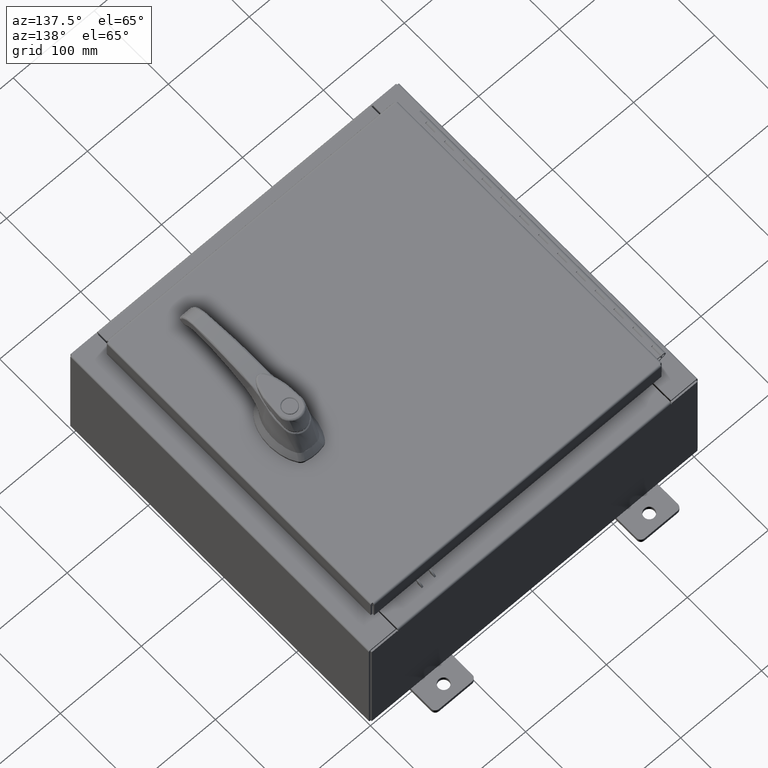
[diagram: clean part render]
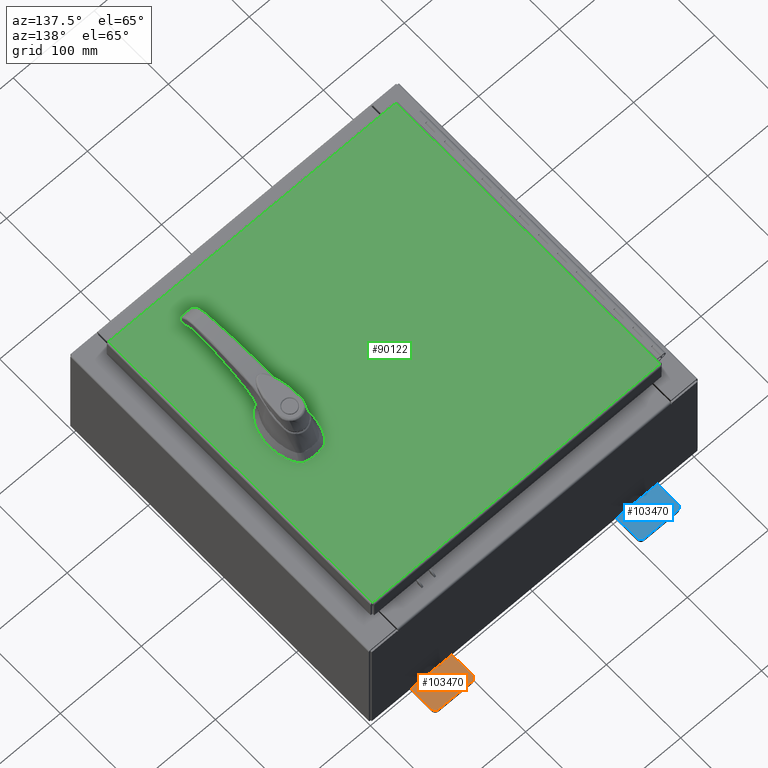
[diagram: same view with three faces highlighted in distinct colors, each labeled with its STEP entity id]
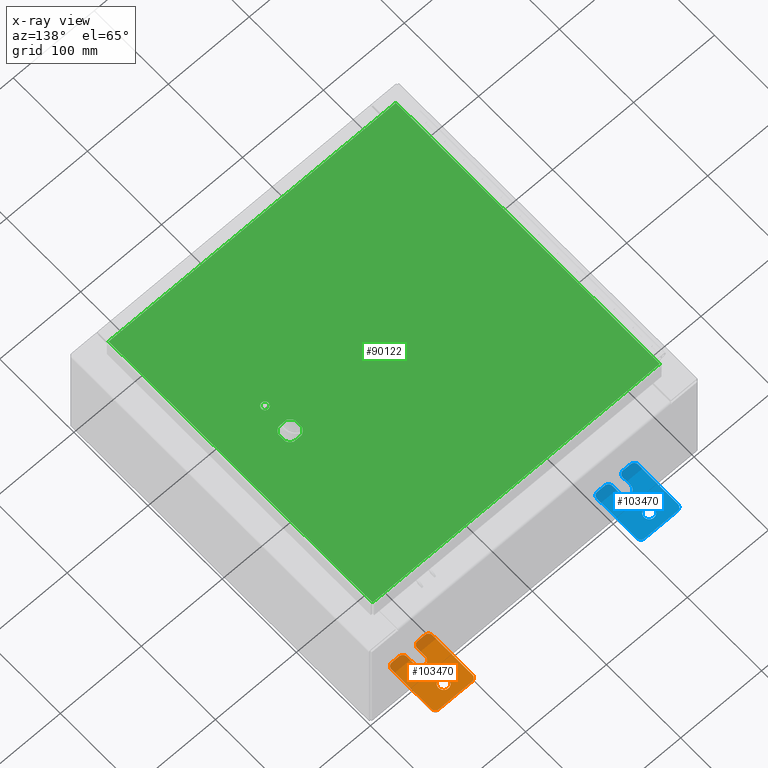
[diagram: x-ray of the same camera — body ghosted, the three highlighted faces saturated]
A machine part, auxiliary view with three faces highlighted in distinct colors.
The next image is the same camera in x-ray (body ghosted, the three faces saturated) — at least one of them is partly hidden behind the body in this view.
Their STEP definitions:

[orange] entity #103470 — the highlighted planar face has unit normal (0, 0, 1).
#368 = AXIS2_PLACEMENT_3D ( 'NONE', #55831, #6468, #64090 ) ;
#591 = EDGE_CURVE ( 'NONE', #22588, #81093, #73869, .T. ) ;
#2702 = DIRECTION ( 'NONE',  ( 1.000000000000000000, -0.0000000000000000000, -5.163192708025532000E-017 ) ) ;
#5444 = PLANE ( 'NONE',  #74349 ) ;
#5671 = CARTESIAN_POINT ( 'NONE',  ( 6.829619984160658000E-017, -1.250000000000003800, 0.2500000000000005000 ) ) ;
#5837 = CARTESIAN_POINT ( 'NONE',  ( 0.0000000000000000000, -1.060000000000004100, -0.8100000000000050500 ) ) ;
#6153 = EDGE_CURVE ( 'NONE', #78520, #81485, #92301, .T. ) ;
#6468 = DIRECTION ( 'NONE',  ( 1.000000000000000000, 0.0000000000000000000, -0.0000000000000000000 ) ) ;
#6765 = LINE ( 'NONE', #50945, #28680 ) ;
#7447 = ORIENTED_EDGE ( 'NONE', *, *, #591, .T. ) ;
#8420 = VERTEX_POINT ( 'NONE', #75197 ) ;
#8698 = DIRECTION ( 'NONE',  ( 0.0000000000000000000, -1.000000000000000000, 1.639108796198558100E-015 ) ) ;
#9643 = EDGE_CURVE ( 'NONE', #81485, #8420, #66093, .T. ) ;
#10253 = DIRECTION ( 'NONE',  ( -1.000000000000000000, 6.523827964459549700E-016, 5.163192708025532000E-017 ) ) ;
#10698 = CIRCLE ( 'NONE', #64456, 0.1900000000000011100 ) ;
#11031 = ORIENTED_EDGE ( 'NONE', *, *, #88887, .F. ) ;
#13607 = DIRECTION ( 'NONE',  ( 1.000000000000000000, -0.0000000000000000000, -5.163192708025532000E-017 ) ) ;
#13627 = CARTESIAN_POINT ( 'NONE',  ( 0.0000000000000000000, -1.250000000000003100, 0.4400000000000020000 ) ) ;
#14053 = DIRECTION ( 'NONE',  ( 0.0000000000000000000, 0.0000000000000000000, -1.000000000000000000 ) ) ;
#14481 = CIRCLE ( 'NONE', #45889, 0.1900000000000011100 ) ;
#14905 = DIRECTION ( 'NONE',  ( 1.000000000000000000, 0.0000000000000000000, -0.0000000000000000000 ) ) ;
#16952 = CIRCLE ( 'NONE', #43343, 0.2499999999999999200 ) ;
#17820 = ORIENTED_EDGE ( 'NONE', *, *, #100490, .T. ) ;
#17823 = VECTOR ( 'NONE', #36803, 39.37007874015748100 ) ;
#20394 = LINE ( 'NONE', #69532, #17823 ) ;
#21339 = VERTEX_POINT ( 'NONE', #73509 ) ;
#21554 = VERTEX_POINT ( 'NONE', #75662 ) ;
#21658 = DIRECTION ( 'NONE',  ( 1.000000000000000000, 0.0000000000000000000, -0.0000000000000000000 ) ) ;
#22012 = DIRECTION ( 'NONE',  ( -0.0000000000000000000, 0.0000000000000000000, -1.000000000000000000 ) ) ;
#22588 = VERTEX_POINT ( 'NONE', #34640 ) ;
#23761 = AXIS2_PLACEMENT_3D ( 'NONE', #52112, #2702, #60320 ) ;
#24862 = VERTEX_POINT ( 'NONE', #68133 ) ;
#26306 = VECTOR ( 'NONE', #8698, 39.37007874015748100 ) ;
#28680 = VECTOR ( 'NONE', #100605, 39.37007874015748100 ) ;
#28807 = VERTEX_POINT ( 'NONE', #93732 ) ;
#28867 = CIRCLE ( 'NONE', #23761, 0.2499999999999999200 ) ;
#29326 = ORIENTED_EDGE ( 'NONE', *, *, #106937, .T. ) ;
#29964 = CARTESIAN_POINT ( 'NONE',  ( 0.0000000000000000000, 0.0000000000000000000, 0.0000000000000000000 ) ) ;
#29988 = VECTOR ( 'NONE', #60810, 39.37007874015748100 ) ;
#32215 = CARTESIAN_POINT ( 'NONE',  ( 0.0000000000000000000, 1.059999999999996500, 0.9999999999999953400 ) ) ;
#32689 = CARTESIAN_POINT ( 'NONE',  ( 0.0000000000000000000, 1.249999999999994200, -1.000000000000010400 ) ) ;
#32699 = VERTEX_POINT ( 'NONE', #99750 ) ;
#33771 = CIRCLE ( 'NONE', #368, 0.1900000000000011100 ) ;
#34176 = ORIENTED_EDGE ( 'NONE', *, *, #80859, .T. ) ;
#34269 = DIRECTION ( 'NONE',  ( 1.000000000000000000, 0.0000000000000000000, -0.0000000000000000000 ) ) ;
#34640 = CARTESIAN_POINT ( 'NONE',  ( 0.0000000000000000000, -1.060000000000004500, -1.000000000000006400 ) ) ;
#36803 = DIRECTION ( 'NONE',  ( 0.0000000000000000000, -1.639108796198553600E-015, -1.000000000000000000 ) ) ;
#39849 = EDGE_CURVE ( 'NONE', #8420, #66221, #6765, .T. ) ;
#40783 = LINE ( 'NONE', #89771, #54911 ) ;
#40949 = DIRECTION ( 'NONE',  ( 0.0000000000000000000, 1.639108796198553600E-015, 1.000000000000000000 ) ) ;
#41131 = VECTOR ( 'NONE', #54990, 39.37007874015748100 ) ;
#42634 = ORIENTED_EDGE ( 'NONE', *, *, #102273, .F. ) ;
#43343 = AXIS2_PLACEMENT_3D ( 'NONE', #59584, #10253, #67904 ) ;
#44405 = CARTESIAN_POINT ( 'NONE',  ( 0.0000000000000000000, 1.059999999999996300, 0.8099999999999938400 ) ) ;
#45497 = DIRECTION ( 'NONE',  ( 1.000000000000000000, 0.0000000000000000000, -0.0000000000000000000 ) ) ;
#45537 = CARTESIAN_POINT ( 'NONE',  ( 0.0000000000000000000, -1.060000000000001200, 0.9999999999999988900 ) ) ;
#45889 = AXIS2_PLACEMENT_3D ( 'NONE', #64266, #14905, #72652 ) ;
#49606 = CIRCLE ( 'NONE', #54684, 0.1900000000000011400 ) ;
#50945 = CARTESIAN_POINT ( 'NONE',  ( 0.0000000000000000000, -1.250000000000002200, 0.9999999999999992200 ) ) ;
#51397 = AXIS2_PLACEMENT_3D ( 'NONE', #5837, #63434, #14053 ) ;
#51505 = CARTESIAN_POINT ( 'NONE',  ( 0.0000000000000000000, -1.060000000000001600, 0.8099999999999978300 ) ) ;
#52112 = CARTESIAN_POINT ( 'NONE',  ( 4.039428427013647300E-016, 0.6249999999999992200, -9.783840404509077400E-018 ) ) ;
#52671 = DIRECTION ( 'NONE',  ( 0.0000000000000000000, 0.0000000000000000000, -1.000000000000000000 ) ) ;
#52775 = ORIENTED_EDGE ( 'NONE', *, *, #77854, .T. ) ;
#54684 = AXIS2_PLACEMENT_3D ( 'NONE', #95139, #45497, #103473 ) ;
#54911 = VECTOR ( 'NONE', #98175, 39.37007874015748100 ) ;
#54990 = DIRECTION ( 'NONE',  ( 6.556435184794182400E-016, 1.000000000000000000, 0.0000000000000000000 ) ) ;
#55489 = CARTESIAN_POINT ( 'NONE',  ( 4.780733988912460100E-016, -0.6249999999999993300, -0.2499999999999998600 ) ) ;
#55831 = CARTESIAN_POINT ( 'NONE',  ( 0.0000000000000000000, -1.060000000000003400, -0.4400000000000005000 ) ) ;
#56345 = CIRCLE ( 'NONE', #51397, 0.1900000000000011100 ) ;
#56928 = EDGE_CURVE ( 'NONE', #32699, #22588, #56345, .T. ) ;
#59513 = ORIENTED_EDGE ( 'NONE', *, *, #91741, .T. ) ;
#59584 = CARTESIAN_POINT ( 'NONE',  ( 4.780733988912460100E-016, -0.6249999999999993300, 5.858939755051854500E-017 ) ) ;
#60320 = DIRECTION ( 'NONE',  ( -5.163192708025533800E-017, 0.0000000000000000000, -1.000000000000000000 ) ) ;
#60810 = DIRECTION ( 'NONE',  ( 0.0000000000000000000, 1.000000000000000000, -1.639108796198558100E-015 ) ) ;
#62102 = DIRECTION ( 'NONE',  ( 0.0000000000000000000, 0.0000000000000000000, -1.000000000000000000 ) ) ;
#62944 = CARTESIAN_POINT ( 'NONE',  ( 4.039428427013647300E-016, 0.6249999999999992200, -9.783840404509077400E-018 ) ) ;
#63434 = DIRECTION ( 'NONE',  ( 1.000000000000000000, 0.0000000000000000000, -0.0000000000000000000 ) ) ;
#64090 = DIRECTION ( 'NONE',  ( 0.0000000000000000000, 0.0000000000000000000, -1.000000000000000000 ) ) ;
#64266 = CARTESIAN_POINT ( 'NONE',  ( 0.0000000000000000000, 1.059999999999993600, -0.8100000000000089400 ) ) ;
#64456 = AXIS2_PLACEMENT_3D ( 'NONE', #44405, #102394, #52671 ) ;
#64802 = CARTESIAN_POINT ( 'NONE',  ( 0.0000000000000000000, 1.249999999999994700, -0.8100000000000092700 ) ) ;
#66093 = CIRCLE ( 'NONE', #88180, 0.1900000000000011100 ) ;
#66221 = VERTEX_POINT ( 'NONE', #13627 ) ;
#66820 = ORIENTED_EDGE ( 'NONE', *, *, #6153, .T. ) ;
#67120 = ORIENTED_EDGE ( 'NONE', *, *, #104345, .T. ) ;
#67897 = CARTESIAN_POINT ( 'NONE',  ( 0.0000000000000000000, 1.249999999999997600, 0.9999999999999951200 ) ) ;
#67904 = DIRECTION ( 'NONE',  ( -6.523827964459551700E-016, -1.000000000000000000, 0.0000000000000000000 ) ) ;
#68133 = CARTESIAN_POINT ( 'NONE',  ( 0.0000000000000000000, -1.250000000000004700, -0.4400000000000002200 ) ) ;
#68289 = VECTOR ( 'NONE', #40949, 39.37007874015748100 ) ;
#69532 = CARTESIAN_POINT ( 'NONE',  ( 0.0000000000000000000, -1.250000000000002200, 0.9999999999999992200 ) ) ;
#71315 = DIRECTION ( 'NONE',  ( -5.163192708025533800E-017, 0.0000000000000000000, -1.000000000000000000 ) ) ;
#71704 = VERTEX_POINT ( 'NONE', #96844 ) ;
#72652 = DIRECTION ( 'NONE',  ( 0.0000000000000000000, 0.0000000000000000000, -1.000000000000000000 ) ) ;
#73253 = ORIENTED_EDGE ( 'NONE', *, *, #9643, .T. ) ;
#73509 = CARTESIAN_POINT ( 'NONE',  ( 0.0000000000000000000, 1.249999999999997300, 0.8099999999999935000 ) ) ;
#73869 = LINE ( 'NONE', #75603, #29988 ) ;
#74349 = AXIS2_PLACEMENT_3D ( 'NONE', #29964, #21658, #22012 ) ;
#75197 = CARTESIAN_POINT ( 'NONE',  ( 0.0000000000000000000, -1.250000000000002400, 0.8099999999999980500 ) ) ;
#75603 = CARTESIAN_POINT ( 'NONE',  ( 0.0000000000000000000, -1.250000000000005600, -1.000000000000006200 ) ) ;
#75662 = CARTESIAN_POINT ( 'NONE',  ( 1.928684683526964400E-016, -1.060000000000003400, -0.2499999999999994400 ) ) ;
#77854 = EDGE_CURVE ( 'NONE', #24862, #32699, #20394, .T. ) ;
#78376 = ORIENTED_EDGE ( 'NONE', *, *, #97193, .T. ) ;
#78520 = VERTEX_POINT ( 'NONE', #32215 ) ;
#78947 = CARTESIAN_POINT ( 'NONE',  ( 0.0000000000000000000, -0.6249999999999992200, 0.2500000000000005000 ) ) ;
#80446 = VERTEX_POINT ( 'NONE', #89874 ) ;
#80491 = ORIENTED_EDGE ( 'NONE', *, *, #94805, .T. ) ;
#80859 = EDGE_CURVE ( 'NONE', #80446, #97762, #102049, .T. ) ;
#81093 = VERTEX_POINT ( 'NONE', #90877 ) ;
#81485 = VERTEX_POINT ( 'NONE', #45537 ) ;
#82657 = FACE_BOUND ( 'NONE', #104267, .T. ) ;
#88180 = AXIS2_PLACEMENT_3D ( 'NONE', #51505, #34269, #62102 ) ;
#88887 = EDGE_CURVE ( 'NONE', #71704, #28807, #28867, .T. ) ;
#89771 = CARTESIAN_POINT ( 'NONE',  ( 4.780733988912460100E-016, -0.6249999999999993300, -0.2499999999999993900 ) ) ;
#89874 = CARTESIAN_POINT ( 'NONE',  ( 1.928684683526972300E-016, -1.060000000000002100, 0.2500000000000005000 ) ) ;
#90384 = ORIENTED_EDGE ( 'NONE', *, *, #39849, .T. ) ;
#90416 = LINE ( 'NONE', #32689, #68289 ) ;
#90877 = CARTESIAN_POINT ( 'NONE',  ( 0.0000000000000000000, 1.059999999999993400, -1.000000000000010000 ) ) ;
#91733 = AXIS2_PLACEMENT_3D ( 'NONE', #62944, #13607, #71315 ) ;
#91741 = EDGE_CURVE ( 'NONE', #21554, #24862, #33771, .T. ) ;
#92301 = LINE ( 'NONE', #67897, #26306 ) ;
#93732 = CARTESIAN_POINT ( 'NONE',  ( 3.910348609313009100E-016, 0.6249999999999992200, -0.2499999999999999200 ) ) ;
#94805 = EDGE_CURVE ( 'NONE', #103538, #21554, #40783, .T. ) ;
#95139 = CARTESIAN_POINT ( 'NONE',  ( 0.0000000000000000000, -1.060000000000002100, 0.4400000000000016700 ) ) ;
#96844 = CARTESIAN_POINT ( 'NONE',  ( 4.168508244714285900E-016, 0.6249999999999992200, 0.2499999999999999200 ) ) ;
#97193 = EDGE_CURVE ( 'NONE', #66221, #80446, #49606, .T. ) ;
#97534 = EDGE_LOOP ( 'NONE', ( #66820, #73253, #90384, #78376, #34176, #29326, #80491, #59513, #52775, #101998, #7447, #101059, #67120, #17820 ) ) ;
#97762 = VERTEX_POINT ( 'NONE', #78947 ) ;
#98175 = DIRECTION ( 'NONE',  ( -6.556435184794182400E-016, -1.000000000000000000, -1.639108796198545600E-016 ) ) ;
#99750 = CARTESIAN_POINT ( 'NONE',  ( 0.0000000000000000000, -1.250000000000005300, -0.8100000000000047200 ) ) ;
#100490 = EDGE_CURVE ( 'NONE', #21339, #78520, #10698, .T. ) ;
#100605 = DIRECTION ( 'NONE',  ( 0.0000000000000000000, -1.639108796198553600E-015, -1.000000000000000000 ) ) ;
#101014 = EDGE_CURVE ( 'NONE', #81093, #106344, #14481, .T. ) ;
#101059 = ORIENTED_EDGE ( 'NONE', *, *, #101014, .T. ) ;
#101998 = ORIENTED_EDGE ( 'NONE', *, *, #56928, .T. ) ;
#102049 = LINE ( 'NONE', #5671, #41131 ) ;
#102273 = EDGE_CURVE ( 'NONE', #28807, #71704, #103691, .T. ) ;
#102394 = DIRECTION ( 'NONE',  ( 1.000000000000000000, 0.0000000000000000000, -0.0000000000000000000 ) ) ;
#103470 = ADVANCED_FACE ( 'NONE', ( #82657, #104855 ), #5444, .T. ) ;
#103473 = DIRECTION ( 'NONE',  ( 0.0000000000000000000, 0.0000000000000000000, -1.000000000000000000 ) ) ;
#103538 = VERTEX_POINT ( 'NONE', #55489 ) ;
#103691 = CIRCLE ( 'NONE', #91733, 0.2499999999999999200 ) ;
#104267 = EDGE_LOOP ( 'NONE', ( #42634, #11031 ) ) ;
#104345 = EDGE_CURVE ( 'NONE', #106344, #21339, #90416, .T. ) ;
#104855 = FACE_OUTER_BOUND ( 'NONE', #97534, .T. ) ;
#106344 = VERTEX_POINT ( 'NONE', #64802 ) ;
#106937 = EDGE_CURVE ( 'NONE', #97762, #103538, #16952, .T. ) ;

[blue] entity #103470 — the highlighted planar face has unit normal (0, 0, 1).
#368 = AXIS2_PLACEMENT_3D ( 'NONE', #55831, #6468, #64090 ) ;
#591 = EDGE_CURVE ( 'NONE', #22588, #81093, #73869, .T. ) ;
#2702 = DIRECTION ( 'NONE',  ( 1.000000000000000000, -0.0000000000000000000, -5.163192708025532000E-017 ) ) ;
#5444 = PLANE ( 'NONE',  #74349 ) ;
#5671 = CARTESIAN_POINT ( 'NONE',  ( 6.829619984160658000E-017, -1.250000000000003800, 0.2500000000000005000 ) ) ;
#5837 = CARTESIAN_POINT ( 'NONE',  ( 0.0000000000000000000, -1.060000000000004100, -0.8100000000000050500 ) ) ;
#6153 = EDGE_CURVE ( 'NONE', #78520, #81485, #92301, .T. ) ;
#6468 = DIRECTION ( 'NONE',  ( 1.000000000000000000, 0.0000000000000000000, -0.0000000000000000000 ) ) ;
#6765 = LINE ( 'NONE', #50945, #28680 ) ;
#7447 = ORIENTED_EDGE ( 'NONE', *, *, #591, .T. ) ;
#8420 = VERTEX_POINT ( 'NONE', #75197 ) ;
#8698 = DIRECTION ( 'NONE',  ( 0.0000000000000000000, -1.000000000000000000, 1.639108796198558100E-015 ) ) ;
#9643 = EDGE_CURVE ( 'NONE', #81485, #8420, #66093, .T. ) ;
#10253 = DIRECTION ( 'NONE',  ( -1.000000000000000000, 6.523827964459549700E-016, 5.163192708025532000E-017 ) ) ;
#10698 = CIRCLE ( 'NONE', #64456, 0.1900000000000011100 ) ;
#11031 = ORIENTED_EDGE ( 'NONE', *, *, #88887, .F. ) ;
#13607 = DIRECTION ( 'NONE',  ( 1.000000000000000000, -0.0000000000000000000, -5.163192708025532000E-017 ) ) ;
#13627 = CARTESIAN_POINT ( 'NONE',  ( 0.0000000000000000000, -1.250000000000003100, 0.4400000000000020000 ) ) ;
#14053 = DIRECTION ( 'NONE',  ( 0.0000000000000000000, 0.0000000000000000000, -1.000000000000000000 ) ) ;
#14481 = CIRCLE ( 'NONE', #45889, 0.1900000000000011100 ) ;
#14905 = DIRECTION ( 'NONE',  ( 1.000000000000000000, 0.0000000000000000000, -0.0000000000000000000 ) ) ;
#16952 = CIRCLE ( 'NONE', #43343, 0.2499999999999999200 ) ;
#17820 = ORIENTED_EDGE ( 'NONE', *, *, #100490, .T. ) ;
#17823 = VECTOR ( 'NONE', #36803, 39.37007874015748100 ) ;
#20394 = LINE ( 'NONE', #69532, #17823 ) ;
#21339 = VERTEX_POINT ( 'NONE', #73509 ) ;
#21554 = VERTEX_POINT ( 'NONE', #75662 ) ;
#21658 = DIRECTION ( 'NONE',  ( 1.000000000000000000, 0.0000000000000000000, -0.0000000000000000000 ) ) ;
#22012 = DIRECTION ( 'NONE',  ( -0.0000000000000000000, 0.0000000000000000000, -1.000000000000000000 ) ) ;
#22588 = VERTEX_POINT ( 'NONE', #34640 ) ;
#23761 = AXIS2_PLACEMENT_3D ( 'NONE', #52112, #2702, #60320 ) ;
#24862 = VERTEX_POINT ( 'NONE', #68133 ) ;
#26306 = VECTOR ( 'NONE', #8698, 39.37007874015748100 ) ;
#28680 = VECTOR ( 'NONE', #100605, 39.37007874015748100 ) ;
#28807 = VERTEX_POINT ( 'NONE', #93732 ) ;
#28867 = CIRCLE ( 'NONE', #23761, 0.2499999999999999200 ) ;
#29326 = ORIENTED_EDGE ( 'NONE', *, *, #106937, .T. ) ;
#29964 = CARTESIAN_POINT ( 'NONE',  ( 0.0000000000000000000, 0.0000000000000000000, 0.0000000000000000000 ) ) ;
#29988 = VECTOR ( 'NONE', #60810, 39.37007874015748100 ) ;
#32215 = CARTESIAN_POINT ( 'NONE',  ( 0.0000000000000000000, 1.059999999999996500, 0.9999999999999953400 ) ) ;
#32689 = CARTESIAN_POINT ( 'NONE',  ( 0.0000000000000000000, 1.249999999999994200, -1.000000000000010400 ) ) ;
#32699 = VERTEX_POINT ( 'NONE', #99750 ) ;
#33771 = CIRCLE ( 'NONE', #368, 0.1900000000000011100 ) ;
#34176 = ORIENTED_EDGE ( 'NONE', *, *, #80859, .T. ) ;
#34269 = DIRECTION ( 'NONE',  ( 1.000000000000000000, 0.0000000000000000000, -0.0000000000000000000 ) ) ;
#34640 = CARTESIAN_POINT ( 'NONE',  ( 0.0000000000000000000, -1.060000000000004500, -1.000000000000006400 ) ) ;
#36803 = DIRECTION ( 'NONE',  ( 0.0000000000000000000, -1.639108796198553600E-015, -1.000000000000000000 ) ) ;
#39849 = EDGE_CURVE ( 'NONE', #8420, #66221, #6765, .T. ) ;
#40783 = LINE ( 'NONE', #89771, #54911 ) ;
#40949 = DIRECTION ( 'NONE',  ( 0.0000000000000000000, 1.639108796198553600E-015, 1.000000000000000000 ) ) ;
#41131 = VECTOR ( 'NONE', #54990, 39.37007874015748100 ) ;
#42634 = ORIENTED_EDGE ( 'NONE', *, *, #102273, .F. ) ;
#43343 = AXIS2_PLACEMENT_3D ( 'NONE', #59584, #10253, #67904 ) ;
#44405 = CARTESIAN_POINT ( 'NONE',  ( 0.0000000000000000000, 1.059999999999996300, 0.8099999999999938400 ) ) ;
#45497 = DIRECTION ( 'NONE',  ( 1.000000000000000000, 0.0000000000000000000, -0.0000000000000000000 ) ) ;
#45537 = CARTESIAN_POINT ( 'NONE',  ( 0.0000000000000000000, -1.060000000000001200, 0.9999999999999988900 ) ) ;
#45889 = AXIS2_PLACEMENT_3D ( 'NONE', #64266, #14905, #72652 ) ;
#49606 = CIRCLE ( 'NONE', #54684, 0.1900000000000011400 ) ;
#50945 = CARTESIAN_POINT ( 'NONE',  ( 0.0000000000000000000, -1.250000000000002200, 0.9999999999999992200 ) ) ;
#51397 = AXIS2_PLACEMENT_3D ( 'NONE', #5837, #63434, #14053 ) ;
#51505 = CARTESIAN_POINT ( 'NONE',  ( 0.0000000000000000000, -1.060000000000001600, 0.8099999999999978300 ) ) ;
#52112 = CARTESIAN_POINT ( 'NONE',  ( 4.039428427013647300E-016, 0.6249999999999992200, -9.783840404509077400E-018 ) ) ;
#52671 = DIRECTION ( 'NONE',  ( 0.0000000000000000000, 0.0000000000000000000, -1.000000000000000000 ) ) ;
#52775 = ORIENTED_EDGE ( 'NONE', *, *, #77854, .T. ) ;
#54684 = AXIS2_PLACEMENT_3D ( 'NONE', #95139, #45497, #103473 ) ;
#54911 = VECTOR ( 'NONE', #98175, 39.37007874015748100 ) ;
#54990 = DIRECTION ( 'NONE',  ( 6.556435184794182400E-016, 1.000000000000000000, 0.0000000000000000000 ) ) ;
#55489 = CARTESIAN_POINT ( 'NONE',  ( 4.780733988912460100E-016, -0.6249999999999993300, -0.2499999999999998600 ) ) ;
#55831 = CARTESIAN_POINT ( 'NONE',  ( 0.0000000000000000000, -1.060000000000003400, -0.4400000000000005000 ) ) ;
#56345 = CIRCLE ( 'NONE', #51397, 0.1900000000000011100 ) ;
#56928 = EDGE_CURVE ( 'NONE', #32699, #22588, #56345, .T. ) ;
#59513 = ORIENTED_EDGE ( 'NONE', *, *, #91741, .T. ) ;
#59584 = CARTESIAN_POINT ( 'NONE',  ( 4.780733988912460100E-016, -0.6249999999999993300, 5.858939755051854500E-017 ) ) ;
#60320 = DIRECTION ( 'NONE',  ( -5.163192708025533800E-017, 0.0000000000000000000, -1.000000000000000000 ) ) ;
#60810 = DIRECTION ( 'NONE',  ( 0.0000000000000000000, 1.000000000000000000, -1.639108796198558100E-015 ) ) ;
#62102 = DIRECTION ( 'NONE',  ( 0.0000000000000000000, 0.0000000000000000000, -1.000000000000000000 ) ) ;
#62944 = CARTESIAN_POINT ( 'NONE',  ( 4.039428427013647300E-016, 0.6249999999999992200, -9.783840404509077400E-018 ) ) ;
#63434 = DIRECTION ( 'NONE',  ( 1.000000000000000000, 0.0000000000000000000, -0.0000000000000000000 ) ) ;
#64090 = DIRECTION ( 'NONE',  ( 0.0000000000000000000, 0.0000000000000000000, -1.000000000000000000 ) ) ;
#64266 = CARTESIAN_POINT ( 'NONE',  ( 0.0000000000000000000, 1.059999999999993600, -0.8100000000000089400 ) ) ;
#64456 = AXIS2_PLACEMENT_3D ( 'NONE', #44405, #102394, #52671 ) ;
#64802 = CARTESIAN_POINT ( 'NONE',  ( 0.0000000000000000000, 1.249999999999994700, -0.8100000000000092700 ) ) ;
#66093 = CIRCLE ( 'NONE', #88180, 0.1900000000000011100 ) ;
#66221 = VERTEX_POINT ( 'NONE', #13627 ) ;
#66820 = ORIENTED_EDGE ( 'NONE', *, *, #6153, .T. ) ;
#67120 = ORIENTED_EDGE ( 'NONE', *, *, #104345, .T. ) ;
#67897 = CARTESIAN_POINT ( 'NONE',  ( 0.0000000000000000000, 1.249999999999997600, 0.9999999999999951200 ) ) ;
#67904 = DIRECTION ( 'NONE',  ( -6.523827964459551700E-016, -1.000000000000000000, 0.0000000000000000000 ) ) ;
#68133 = CARTESIAN_POINT ( 'NONE',  ( 0.0000000000000000000, -1.250000000000004700, -0.4400000000000002200 ) ) ;
#68289 = VECTOR ( 'NONE', #40949, 39.37007874015748100 ) ;
#69532 = CARTESIAN_POINT ( 'NONE',  ( 0.0000000000000000000, -1.250000000000002200, 0.9999999999999992200 ) ) ;
#71315 = DIRECTION ( 'NONE',  ( -5.163192708025533800E-017, 0.0000000000000000000, -1.000000000000000000 ) ) ;
#71704 = VERTEX_POINT ( 'NONE', #96844 ) ;
#72652 = DIRECTION ( 'NONE',  ( 0.0000000000000000000, 0.0000000000000000000, -1.000000000000000000 ) ) ;
#73253 = ORIENTED_EDGE ( 'NONE', *, *, #9643, .T. ) ;
#73509 = CARTESIAN_POINT ( 'NONE',  ( 0.0000000000000000000, 1.249999999999997300, 0.8099999999999935000 ) ) ;
#73869 = LINE ( 'NONE', #75603, #29988 ) ;
#74349 = AXIS2_PLACEMENT_3D ( 'NONE', #29964, #21658, #22012 ) ;
#75197 = CARTESIAN_POINT ( 'NONE',  ( 0.0000000000000000000, -1.250000000000002400, 0.8099999999999980500 ) ) ;
#75603 = CARTESIAN_POINT ( 'NONE',  ( 0.0000000000000000000, -1.250000000000005600, -1.000000000000006200 ) ) ;
#75662 = CARTESIAN_POINT ( 'NONE',  ( 1.928684683526964400E-016, -1.060000000000003400, -0.2499999999999994400 ) ) ;
#77854 = EDGE_CURVE ( 'NONE', #24862, #32699, #20394, .T. ) ;
#78376 = ORIENTED_EDGE ( 'NONE', *, *, #97193, .T. ) ;
#78520 = VERTEX_POINT ( 'NONE', #32215 ) ;
#78947 = CARTESIAN_POINT ( 'NONE',  ( 0.0000000000000000000, -0.6249999999999992200, 0.2500000000000005000 ) ) ;
#80446 = VERTEX_POINT ( 'NONE', #89874 ) ;
#80491 = ORIENTED_EDGE ( 'NONE', *, *, #94805, .T. ) ;
#80859 = EDGE_CURVE ( 'NONE', #80446, #97762, #102049, .T. ) ;
#81093 = VERTEX_POINT ( 'NONE', #90877 ) ;
#81485 = VERTEX_POINT ( 'NONE', #45537 ) ;
#82657 = FACE_BOUND ( 'NONE', #104267, .T. ) ;
#88180 = AXIS2_PLACEMENT_3D ( 'NONE', #51505, #34269, #62102 ) ;
#88887 = EDGE_CURVE ( 'NONE', #71704, #28807, #28867, .T. ) ;
#89771 = CARTESIAN_POINT ( 'NONE',  ( 4.780733988912460100E-016, -0.6249999999999993300, -0.2499999999999993900 ) ) ;
#89874 = CARTESIAN_POINT ( 'NONE',  ( 1.928684683526972300E-016, -1.060000000000002100, 0.2500000000000005000 ) ) ;
#90384 = ORIENTED_EDGE ( 'NONE', *, *, #39849, .T. ) ;
#90416 = LINE ( 'NONE', #32689, #68289 ) ;
#90877 = CARTESIAN_POINT ( 'NONE',  ( 0.0000000000000000000, 1.059999999999993400, -1.000000000000010000 ) ) ;
#91733 = AXIS2_PLACEMENT_3D ( 'NONE', #62944, #13607, #71315 ) ;
#91741 = EDGE_CURVE ( 'NONE', #21554, #24862, #33771, .T. ) ;
#92301 = LINE ( 'NONE', #67897, #26306 ) ;
#93732 = CARTESIAN_POINT ( 'NONE',  ( 3.910348609313009100E-016, 0.6249999999999992200, -0.2499999999999999200 ) ) ;
#94805 = EDGE_CURVE ( 'NONE', #103538, #21554, #40783, .T. ) ;
#95139 = CARTESIAN_POINT ( 'NONE',  ( 0.0000000000000000000, -1.060000000000002100, 0.4400000000000016700 ) ) ;
#96844 = CARTESIAN_POINT ( 'NONE',  ( 4.168508244714285900E-016, 0.6249999999999992200, 0.2499999999999999200 ) ) ;
#97193 = EDGE_CURVE ( 'NONE', #66221, #80446, #49606, .T. ) ;
#97534 = EDGE_LOOP ( 'NONE', ( #66820, #73253, #90384, #78376, #34176, #29326, #80491, #59513, #52775, #101998, #7447, #101059, #67120, #17820 ) ) ;
#97762 = VERTEX_POINT ( 'NONE', #78947 ) ;
#98175 = DIRECTION ( 'NONE',  ( -6.556435184794182400E-016, -1.000000000000000000, -1.639108796198545600E-016 ) ) ;
#99750 = CARTESIAN_POINT ( 'NONE',  ( 0.0000000000000000000, -1.250000000000005300, -0.8100000000000047200 ) ) ;
#100490 = EDGE_CURVE ( 'NONE', #21339, #78520, #10698, .T. ) ;
#100605 = DIRECTION ( 'NONE',  ( 0.0000000000000000000, -1.639108796198553600E-015, -1.000000000000000000 ) ) ;
#101014 = EDGE_CURVE ( 'NONE', #81093, #106344, #14481, .T. ) ;
#101059 = ORIENTED_EDGE ( 'NONE', *, *, #101014, .T. ) ;
#101998 = ORIENTED_EDGE ( 'NONE', *, *, #56928, .T. ) ;
#102049 = LINE ( 'NONE', #5671, #41131 ) ;
#102273 = EDGE_CURVE ( 'NONE', #28807, #71704, #103691, .T. ) ;
#102394 = DIRECTION ( 'NONE',  ( 1.000000000000000000, 0.0000000000000000000, -0.0000000000000000000 ) ) ;
#103470 = ADVANCED_FACE ( 'NONE', ( #82657, #104855 ), #5444, .T. ) ;
#103473 = DIRECTION ( 'NONE',  ( 0.0000000000000000000, 0.0000000000000000000, -1.000000000000000000 ) ) ;
#103538 = VERTEX_POINT ( 'NONE', #55489 ) ;
#103691 = CIRCLE ( 'NONE', #91733, 0.2499999999999999200 ) ;
#104267 = EDGE_LOOP ( 'NONE', ( #42634, #11031 ) ) ;
#104345 = EDGE_CURVE ( 'NONE', #106344, #21339, #90416, .T. ) ;
#104855 = FACE_OUTER_BOUND ( 'NONE', #97534, .T. ) ;
#106344 = VERTEX_POINT ( 'NONE', #64802 ) ;
#106937 = EDGE_CURVE ( 'NONE', #97762, #103538, #16952, .T. ) ;

[green] entity #90122 — the highlighted planar face has unit normal (0, 0, -1).
#323 = VERTEX_POINT ( 'NONE', #73116 ) ;
#1762 = CARTESIAN_POINT ( 'NONE',  ( 0.0000000000000000000, 0.4029999999999252000, 0.0000000000000000000 ) ) ;
#2287 = AXIS2_PLACEMENT_3D ( 'NONE', #69460, #20092, #77858 ) ;
#2708 = VERTEX_POINT ( 'NONE', #98390 ) ;
#3372 = VERTEX_POINT ( 'NONE', #83722 ) ;
#4552 = CARTESIAN_POINT ( 'NONE',  ( 4.406500000000002100, -1.338000000000000100, 0.0000000000000000000 ) ) ;
#7411 = EDGE_LOOP ( 'NONE', ( #101803, #74496, #87809, #81774, #100997, #87957, #49504, #79508 ) ) ;
#8946 = CARTESIAN_POINT ( 'NONE',  ( 4.578000000000002100, 0.0000000000000000000, 0.0000000000000000000 ) ) ;
#10711 = VERTEX_POINT ( 'NONE', #92182 ) ;
#11153 = EDGE_CURVE ( 'NONE', #323, #76135, #71929, .T. ) ;
#11889 = CIRCLE ( 'NONE', #17412, 0.1715000000000000700 ) ;
#11958 = DIRECTION ( 'NONE',  ( 0.0000000000000000000, -1.000000000000000000, 0.0000000000000000000 ) ) ;
#12267 = CARTESIAN_POINT ( 'NONE',  ( 6.990299999999998600, 7.006300000000000400, -2.219626494852214000E-016 ) ) ;
#12300 = CARTESIAN_POINT ( 'NONE',  ( 6.990299999999998600, -7.006300000000000400, -2.219626494852214000E-016 ) ) ;
#12609 = DIRECTION ( 'NONE',  ( 1.000000000000000000, 0.0000000000000000000, 0.0000000000000000000 ) ) ;
#13034 = EDGE_CURVE ( 'NONE', #99566, #17317, #57499, .T. ) ;
#15800 = FACE_OUTER_BOUND ( 'NONE', #80057, .T. ) ;
#17226 = DIRECTION ( 'NONE',  ( 1.000000000000000000, 0.0000000000000000000, 0.0000000000000000000 ) ) ;
#17317 = VERTEX_POINT ( 'NONE', #22506 ) ;
#17412 = AXIS2_PLACEMENT_3D ( 'NONE', #47821, #105850, #56074 ) ;
#17570 = LINE ( 'NONE', #12267, #80870 ) ;
#17770 = ORIENTED_EDGE ( 'NONE', *, *, #57837, .T. ) ;
#17898 = EDGE_CURVE ( 'NONE', #43488, #59818, #51862, .T. ) ;
#20092 = DIRECTION ( 'NONE',  ( -0.0000000000000000000, 0.0000000000000000000, 1.000000000000000000 ) ) ;
#20856 = ORIENTED_EDGE ( 'NONE', *, *, #99137, .F. ) ;
#21558 = CARTESIAN_POINT ( 'NONE',  ( -6.990300000000001300, -7.006300000000000400, -2.219626494852214000E-016 ) ) ;
#21891 = CARTESIAN_POINT ( 'NONE',  ( 4.578000000000002100, 0.0000000000000000000, 0.0000000000000000000 ) ) ;
#21990 = CARTESIAN_POINT ( 'NONE',  ( 4.578000000000002100, 0.0000000000000000000, 0.0000000000000000000 ) ) ;
#22506 = CARTESIAN_POINT ( 'NONE',  ( 4.377772629243692900, 0.4029999999999252000, 0.0000000000000000000 ) ) ;
#23510 = VECTOR ( 'NONE', #98196, 39.37007874015748100 ) ;
#25493 = ORIENTED_EDGE ( 'NONE', *, *, #11153, .T. ) ;
#26971 = CARTESIAN_POINT ( 'NONE',  ( -6.990300000000001300, -7.006300000000000400, -2.219626494852214000E-016 ) ) ;
#27566 = VECTOR ( 'NONE', #33646, 39.37007874015748100 ) ;
#27630 = EDGE_CURVE ( 'NONE', #59818, #3372, #33673, .T. ) ;
#28877 = DIRECTION ( 'NONE',  ( -1.000000000000000000, -0.0000000000000000000, -0.0000000000000000000 ) ) ;
#29853 = DIRECTION ( 'NONE',  ( 1.000000000000000000, -0.0000000000000000000, -0.0000000000000000000 ) ) ;
#29932 = VECTOR ( 'NONE', #12609, 39.37007874015748100 ) ;
#30083 = AXIS2_PLACEMENT_3D ( 'NONE', #94330, #44683, #102693 ) ;
#30132 = CARTESIAN_POINT ( 'NONE',  ( 6.990299999999998600, 7.006300000000000400, -2.219626494852214000E-016 ) ) ;
#30199 = DIRECTION ( 'NONE',  ( 1.000000000000000000, 0.0000000000000000000, 0.0000000000000000000 ) ) ;
#30301 = DIRECTION ( 'NONE',  ( 1.000000000000000000, 0.0000000000000000000, 0.0000000000000000000 ) ) ;
#31857 = VERTEX_POINT ( 'NONE', #30132 ) ;
#32103 = VERTEX_POINT ( 'NONE', #98826 ) ;
#32303 = CARTESIAN_POINT ( 'NONE',  ( 4.175000000000076200, 0.0000000000000000000, 0.0000000000000000000 ) ) ;
#33646 = DIRECTION ( 'NONE',  ( 0.0000000000000000000, 1.000000000000000000, 0.0000000000000000000 ) ) ;
#33673 = CIRCLE ( 'NONE', #30083, 0.4499999999999156900 ) ;
#34605 = PLANE ( 'NONE',  #69333 ) ;
#34695 = CIRCLE ( 'NONE', #70620, 0.4499999999999156900 ) ;
#35663 = CARTESIAN_POINT ( 'NONE',  ( 4.778227370756312100, -0.4029999999999252000, 0.0000000000000000000 ) ) ;
#38213 = VECTOR ( 'NONE', #40856, 39.37007874015748100 ) ;
#40517 = LINE ( 'NONE', #86886, #84462 ) ;
#40814 = AXIS2_PLACEMENT_3D ( 'NONE', #21990, #79745, #30301 ) ;
#40856 = DIRECTION ( 'NONE',  ( -1.000000000000000000, 0.0000000000000000000, 0.0000000000000000000 ) ) ;
#41047 = CARTESIAN_POINT ( 'NONE',  ( 4.175000000000076200, -0.2002273707563079800, 0.0000000000000000000 ) ) ;
#42860 = DIRECTION ( 'NONE',  ( 0.0000000000000000000, 0.0000000000000000000, -1.000000000000000000 ) ) ;
#43488 = VERTEX_POINT ( 'NONE', #91999 ) ;
#44683 = DIRECTION ( 'NONE',  ( -0.0000000000000000000, 0.0000000000000000000, 1.000000000000000000 ) ) ;
#45827 = CARTESIAN_POINT ( 'NONE',  ( 0.0000000000000000000, -0.4029999999999252000, 0.0000000000000000000 ) ) ;
#46582 = ORIENTED_EDGE ( 'NONE', *, *, #69973, .T. ) ;
#47821 = CARTESIAN_POINT ( 'NONE',  ( 4.578000000000002100, -1.338000000000000100, 0.0000000000000000000 ) ) ;
#49392 = CIRCLE ( 'NONE', #2287, 0.1715000000000000700 ) ;
#49504 = ORIENTED_EDGE ( 'NONE', *, *, #13034, .F. ) ;
#50006 = VECTOR ( 'NONE', #11958, 39.37007874015748100 ) ;
#51862 = LINE ( 'NONE', #45827, #29932 ) ;
#54849 = EDGE_CURVE ( 'NONE', #17317, #2708, #34695, .T. ) ;
#56074 = DIRECTION ( 'NONE',  ( 1.000000000000000000, 0.0000000000000000000, 0.0000000000000000000 ) ) ;
#57065 = FACE_BOUND ( 'NONE', #7411, .T. ) ;
#57499 = LINE ( 'NONE', #1762, #38213 ) ;
#57837 = EDGE_CURVE ( 'NONE', #31857, #323, #17570, .T. ) ;
#58041 = CARTESIAN_POINT ( 'NONE',  ( -6.990300000000001300, 7.006300000000000400, 3.414809992080329000E-016 ) ) ;
#59261 = CIRCLE ( 'NONE', #77825, 0.4499999999999156900 ) ;
#59818 = VERTEX_POINT ( 'NONE', #35663 ) ;
#62028 = VECTOR ( 'NONE', #29853, 39.37007874015748100 ) ;
#62486 = EDGE_CURVE ( 'NONE', #32103, #3372, #40517, .T. ) ;
#62525 = VERTEX_POINT ( 'NONE', #4552 ) ;
#64735 = LINE ( 'NONE', #32303, #23510 ) ;
#66500 = ORIENTED_EDGE ( 'NONE', *, *, #71450, .F. ) ;
#66592 = DIRECTION ( 'NONE',  ( -0.0000000000000000000, 0.0000000000000000000, 1.000000000000000000 ) ) ;
#69333 = AXIS2_PLACEMENT_3D ( 'NONE', #75703, #42860, #100834 ) ;
#69460 = CARTESIAN_POINT ( 'NONE',  ( 4.578000000000002100, -1.338000000000000100, 0.0000000000000000000 ) ) ;
#69973 = EDGE_CURVE ( 'NONE', #72552, #31857, #93601, .T. ) ;
#70620 = AXIS2_PLACEMENT_3D ( 'NONE', #8946, #66592, #17226 ) ;
#71450 = EDGE_CURVE ( 'NONE', #10711, #62525, #11889, .T. ) ;
#71543 = EDGE_CURVE ( 'NONE', #2708, #95841, #64735, .T. ) ;
#71929 = LINE ( 'NONE', #58041, #50006 ) ;
#72552 = VERTEX_POINT ( 'NONE', #12300 ) ;
#73116 = CARTESIAN_POINT ( 'NONE',  ( -6.990300000000001300, 7.006300000000000400, 3.414809992080329000E-016 ) ) ;
#74496 = ORIENTED_EDGE ( 'NONE', *, *, #27630, .F. ) ;
#75703 = CARTESIAN_POINT ( 'NONE',  ( 0.0000000000000000000, 0.0000000000000000000, 0.0000000000000000000 ) ) ;
#76135 = VERTEX_POINT ( 'NONE', #26971 ) ;
#77825 = AXIS2_PLACEMENT_3D ( 'NONE', #21891, #79641, #30199 ) ;
#77858 = DIRECTION ( 'NONE',  ( 1.000000000000000000, 0.0000000000000000000, 0.0000000000000000000 ) ) ;
#79508 = ORIENTED_EDGE ( 'NONE', *, *, #83749, .F. ) ;
#79641 = DIRECTION ( 'NONE',  ( -0.0000000000000000000, 0.0000000000000000000, 1.000000000000000000 ) ) ;
#79745 = DIRECTION ( 'NONE',  ( -0.0000000000000000000, 0.0000000000000000000, 1.000000000000000000 ) ) ;
#80057 = EDGE_LOOP ( 'NONE', ( #84781, #46582, #17770, #25493 ) ) ;
#80870 = VECTOR ( 'NONE', #28877, 39.37007874015748100 ) ;
#81774 = ORIENTED_EDGE ( 'NONE', *, *, #104056, .F. ) ;
#83087 = CARTESIAN_POINT ( 'NONE',  ( 6.990299999999998600, -7.006300000000000400, -2.219626494852214000E-016 ) ) ;
#83668 = CIRCLE ( 'NONE', #40814, 0.4499999999999156900 ) ;
#83722 = CARTESIAN_POINT ( 'NONE',  ( 4.980999999999927900, -0.2002273707563079800, 0.0000000000000000000 ) ) ;
#83749 = EDGE_CURVE ( 'NONE', #32103, #99566, #83668, .T. ) ;
#84462 = VECTOR ( 'NONE', #95286, 39.37007874015748100 ) ;
#84781 = ORIENTED_EDGE ( 'NONE', *, *, #102261, .T. ) ;
#86886 = CARTESIAN_POINT ( 'NONE',  ( 4.980999999999927900, 0.0000000000000000000, 0.0000000000000000000 ) ) ;
#87809 = ORIENTED_EDGE ( 'NONE', *, *, #17898, .F. ) ;
#87957 = ORIENTED_EDGE ( 'NONE', *, *, #54849, .F. ) ;
#88285 = EDGE_LOOP ( 'NONE', ( #66500, #20856 ) ) ;
#90122 = ADVANCED_FACE ( 'NONE', ( #98698, #15800, #57065 ), #34605, .F. ) ;
#91999 = CARTESIAN_POINT ( 'NONE',  ( 4.377772629243692900, -0.4029999999999252000, 0.0000000000000000000 ) ) ;
#92182 = CARTESIAN_POINT ( 'NONE',  ( 4.749500000000002100, -1.338000000000000100, 0.0000000000000000000 ) ) ;
#93601 = LINE ( 'NONE', #83087, #27566 ) ;
#94330 = CARTESIAN_POINT ( 'NONE',  ( 4.578000000000002100, 0.0000000000000000000, 0.0000000000000000000 ) ) ;
#95286 = DIRECTION ( 'NONE',  ( 0.0000000000000000000, -1.000000000000000000, 0.0000000000000000000 ) ) ;
#95841 = VERTEX_POINT ( 'NONE', #41047 ) ;
#98196 = DIRECTION ( 'NONE',  ( 0.0000000000000000000, -1.000000000000000000, 0.0000000000000000000 ) ) ;
#98233 = CARTESIAN_POINT ( 'NONE',  ( 4.778227370756312100, 0.4029999999999252000, 0.0000000000000000000 ) ) ;
#98390 = CARTESIAN_POINT ( 'NONE',  ( 4.175000000000076200, 0.2002273707563079800, 0.0000000000000000000 ) ) ;
#98698 = FACE_BOUND ( 'NONE', #88285, .T. ) ;
#98826 = CARTESIAN_POINT ( 'NONE',  ( 4.980999999999927900, 0.2002273707563080300, 0.0000000000000000000 ) ) ;
#99137 = EDGE_CURVE ( 'NONE', #62525, #10711, #49392, .T. ) ;
#99566 = VERTEX_POINT ( 'NONE', #98233 ) ;
#100834 = DIRECTION ( 'NONE',  ( -1.000000000000000000, 0.0000000000000000000, -0.0000000000000000000 ) ) ;
#100997 = ORIENTED_EDGE ( 'NONE', *, *, #71543, .F. ) ;
#101803 = ORIENTED_EDGE ( 'NONE', *, *, #62486, .T. ) ;
#102261 = EDGE_CURVE ( 'NONE', #76135, #72552, #106342, .T. ) ;
#102693 = DIRECTION ( 'NONE',  ( 1.000000000000000000, 0.0000000000000000000, 0.0000000000000000000 ) ) ;
#104056 = EDGE_CURVE ( 'NONE', #95841, #43488, #59261, .T. ) ;
#105850 = DIRECTION ( 'NONE',  ( -0.0000000000000000000, 0.0000000000000000000, 1.000000000000000000 ) ) ;
#106342 = LINE ( 'NONE', #21558, #62028 ) ;